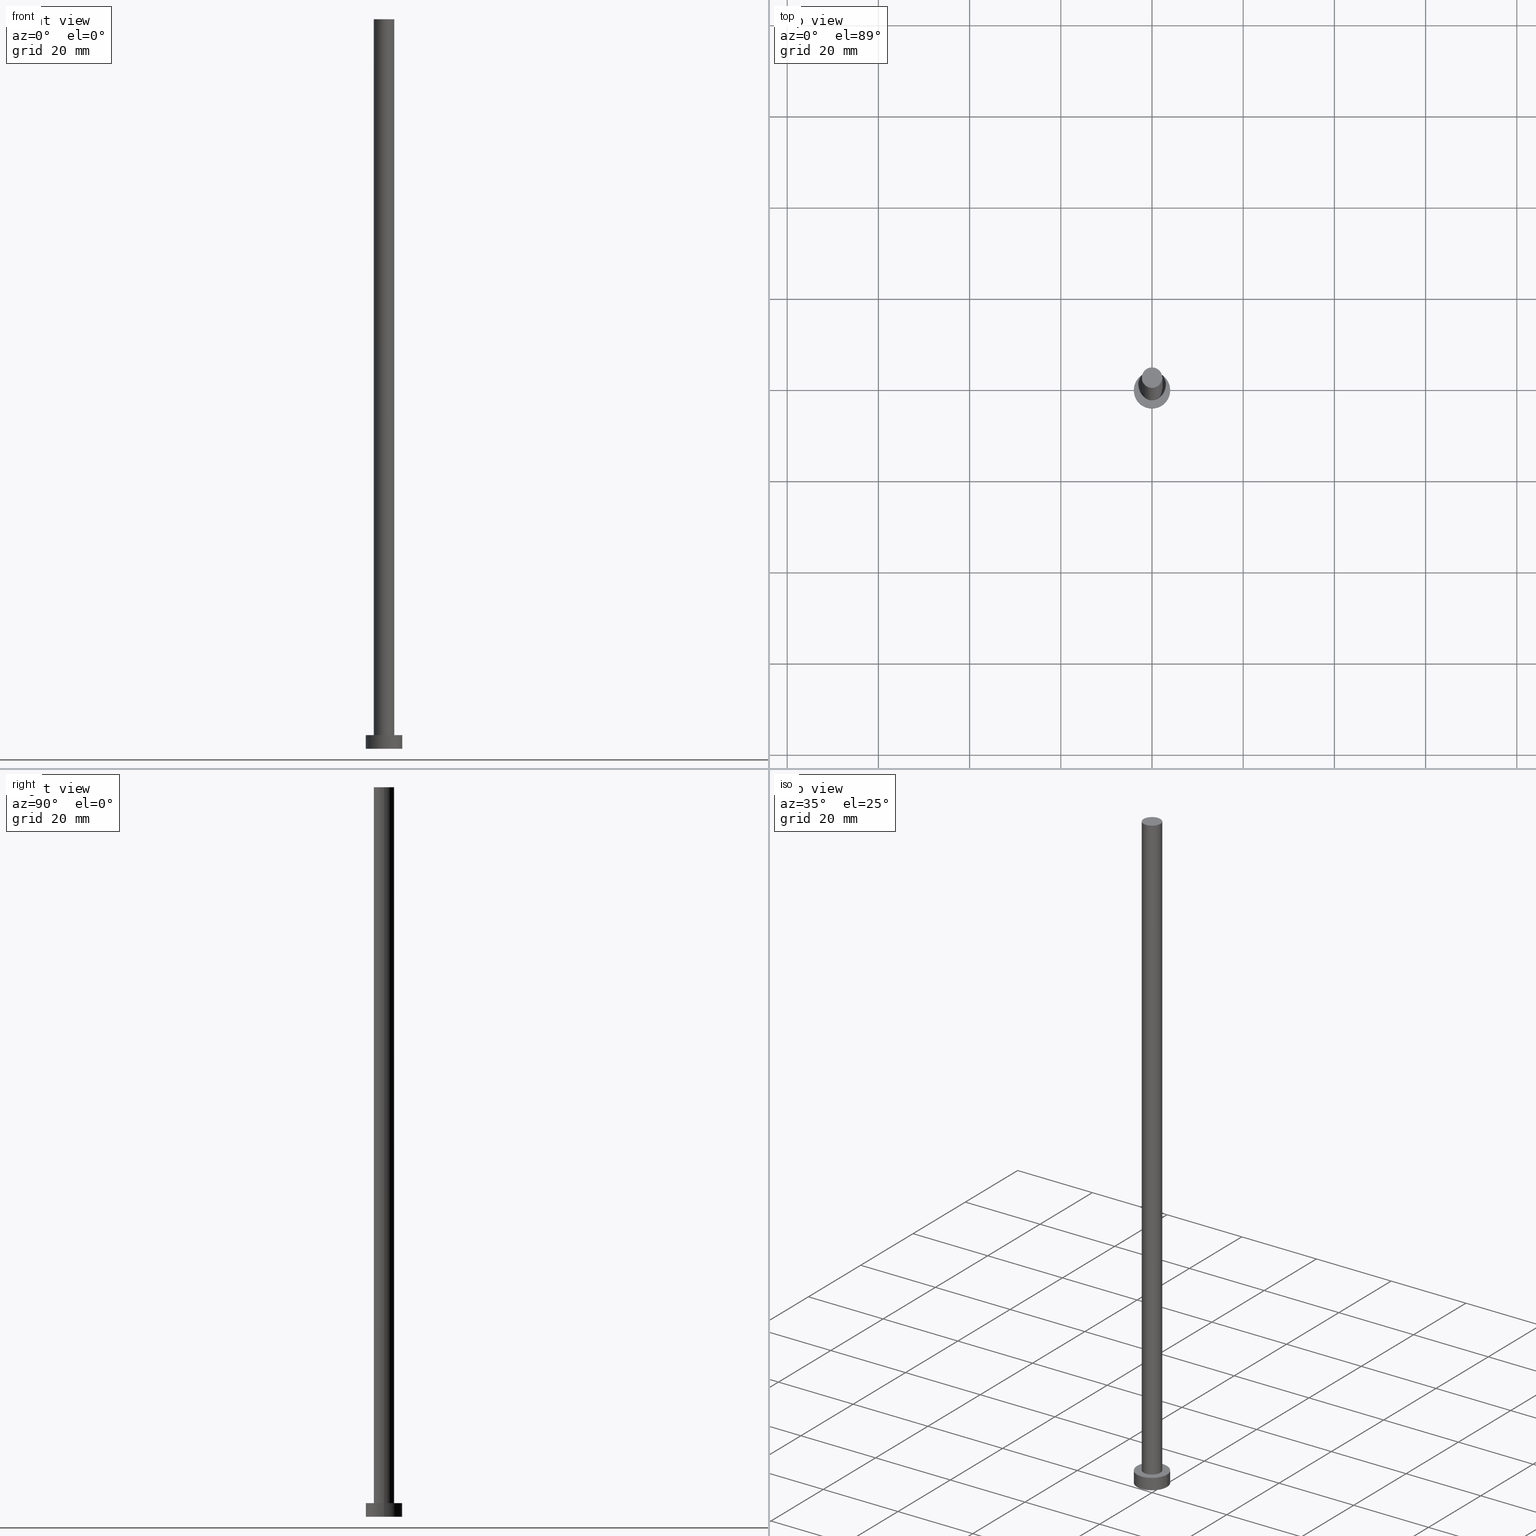
[diagram: canonical four-view strip — front | top / right | iso, engineering-drawing reading convention]
A machine part, canonical four-view strip (front | top / right | iso — engineering-drawing reading convention). The complete STEP part file that produces these views, byte-faithful:
ISO-10303-21;
HEADER;
FILE_DESCRIPTION (( 'STEP AP203' ),
    '1' );
FILE_NAME ('1904.STEP',
    '2023-02-13T16:06:51',
    ( '' ),
    ( '' ),
    'SwSTEP 2.0',
    'SolidWorks 2019',
    '' );
FILE_SCHEMA (( 'CONFIG_CONTROL_DESIGN' ));
ENDSEC;

DATA;
#1 = VECTOR ( 'NONE', #252, 1000.000000000000000 ) ;
#2 = CARTESIAN_POINT ( 'NONE',  ( 0.000000000000000000, 0.000000000000000000, 160.0000000000000000 ) ) ;
#3 = VERTEX_POINT ( 'NONE', #47 ) ;
#4 = EDGE_CURVE ( 'NONE', #236, #3, #185, .T. ) ;
#5 = AXIS2_PLACEMENT_3D ( 'NONE', #2, #237, #72 ) ;
#6 = EDGE_LOOP ( 'NONE', ( #20, #26, #219, #217 ) ) ;
#7 = ADVANCED_FACE ( 'NONE', ( #35, #172 ), #80, .T. ) ;
#8 = DESIGN_CONTEXT ( 'detailed design', #84, 'design' ) ;
#9 = DIRECTION ( 'NONE',  ( 1.000000000000000000, 0.000000000000000000, -0.000000000000000000 ) ) ;
#10 = DIRECTION ( 'NONE',  ( 0.000000000000000000, 0.000000000000000000, 1.000000000000000000 ) ) ;
#11 = CALENDAR_DATE ( 2023, 13, 2 ) ;
#12 = AXIS2_PLACEMENT_3D ( 'NONE', #89, #160, #66 ) ;
#13 = APPROVAL_ROLE ( '' ) ;
#14 = PERSON_AND_ORGANIZATION_ROLE ( 'design_supplier' ) ;
#15 = LINE ( 'NONE', #146, #1 ) ;
#16 = MECHANICAL_CONTEXT ( 'NONE', #25, 'mechanical' ) ;
#17 = CARTESIAN_POINT ( 'NONE',  ( 0.000000000000000000, 0.000000000000000000, 3.000000000000000000 ) ) ;
#18 = APPROVAL_DATE_TIME ( #147, #241 ) ;
#19 = DIRECTION ( 'NONE',  ( 1.000000000000000000, 0.000000000000000000, 0.000000000000000000 ) ) ;
#20 = ORIENTED_EDGE ( 'NONE', *, *, #218, .F. ) ;
#21 = COORDINATED_UNIVERSAL_TIME_OFFSET ( 1, 0, .AHEAD. ) ;
#22 = CARTESIAN_POINT ( 'NONE',  ( 0.000000000000000000, 0.000000000000000000, 3.000000000000000000 ) ) ;
#23 = CARTESIAN_POINT ( 'NONE',  ( 2.250000000000000000, 2.755455298081544285E-16, 160.0000000000000000 ) ) ;
#24 = EDGE_CURVE ( 'NONE', #57, #174, #182, .T. ) ;
#25 = APPLICATION_CONTEXT ( 'configuration controlled 3d designs of mechanical parts and assemblies' ) ;
#26 = ORIENTED_EDGE ( 'NONE', *, *, #24, .F. ) ;
#27 = DIRECTION ( 'NONE',  ( 1.000000000000000000, 0.000000000000000000, -0.000000000000000000 ) ) ;
#28 = AXIS2_PLACEMENT_3D ( 'NONE', #238, #178, #158 ) ;
#29 = ORGANIZATION ( 'NEUR�EN�', 'NEUR�EN�', '' ) ;
#30 = EDGE_CURVE ( 'NONE', #31, #196, #220, .T. ) ;
#31 = VERTEX_POINT ( 'NONE', #81 ) ;
#32 = APPROVAL_STATUS ( 'not_yet_approved' ) ;
#33 = COORDINATED_UNIVERSAL_TIME_OFFSET ( 1, 0, .AHEAD. ) ;
#34 = APPROVAL_DATE_TIME ( #162, #231 ) ;
#35 = FACE_BOUND ( 'NONE', #107, .T. ) ;
#36 = LOCAL_TIME ( 17, 6, 51.00000000000000000, #255 ) ;
#37 = EDGE_LOOP ( 'NONE', ( #125, #169 ) ) ;
#38 = PERSON_AND_ORGANIZATION ( #221, #29 ) ;
#39 = CC_DESIGN_PERSON_AND_ORGANIZATION_ASSIGNMENT ( #116, #152, ( #246 ) ) ;
#40 = CALENDAR_DATE ( 2023, 13, 2 ) ;
#41 = ORIENTED_EDGE ( 'NONE', *, *, #65, .F. ) ;
#42 = DIRECTION ( 'NONE',  ( 0.000000000000000000, 0.000000000000000000, 1.000000000000000000 ) ) ;
#43 = FACE_OUTER_BOUND ( 'NONE', #6, .T. ) ;
#44 = ADVANCED_FACE ( 'NONE', ( #233 ), #58, .T. ) ;
#45 = CC_DESIGN_PERSON_AND_ORGANIZATION_ASSIGNMENT ( #249, #164, ( #171 ) ) ;
#46 = AXIS2_PLACEMENT_3D ( 'NONE', #191, #209, #186 ) ;
#47 = CARTESIAN_POINT ( 'NONE',  ( -2.250000000000000000, 0.000000000000000000, 160.0000000000000000 ) ) ;
#48 = DIRECTION ( 'NONE',  ( -0.000000000000000000, -0.000000000000000000, -1.000000000000000000 ) ) ;
#49 = VECTOR ( 'NONE', #149, 1000.000000000000000 ) ;
#50 = ADVANCED_FACE ( 'NONE', ( #102 ), #177, .T. ) ;
#51 = DATE_AND_TIME ( #67, #161 ) ;
#52 = EDGE_CURVE ( 'NONE', #3, #100, #15, .T. ) ;
#53 = ORIENTED_EDGE ( 'NONE', *, *, #52, .F. ) ;
#54 = APPLICATION_PROTOCOL_DEFINITION ( 'international standard', 'config_control_design', 1994, #84 ) ;
#55 = PRODUCT_RELATED_PRODUCT_CATEGORY ( 'detail', '', ( #246 ) ) ;
#56 = CIRCLE ( 'NONE', #247, 4.000000000000000000 ) ;
#57 = VERTEX_POINT ( 'NONE', #163 ) ;
#58 = PLANE ( 'NONE',  #87 ) ;
#59 = CC_DESIGN_APPROVAL ( #242, ( #199 ) ) ;
#60 = ORIENTED_EDGE ( 'NONE', *, *, #214, .F. ) ;
#61 = ORIENTED_EDGE ( 'NONE', *, *, #215, .T. ) ;
#62 = CARTESIAN_POINT ( 'NONE',  ( 0.000000000000000000, 0.000000000000000000, 160.0000000000000000 ) ) ;
#63 = ORIENTED_EDGE ( 'NONE', *, *, #114, .F. ) ;
#64 = COORDINATED_UNIVERSAL_TIME_OFFSET ( 1, 0, .AHEAD. ) ;
#65 = EDGE_CURVE ( 'NONE', #243, #100, #179, .T. ) ;
#66 = DIRECTION ( 'NONE',  ( 1.000000000000000000, 0.000000000000000000, 0.000000000000000000 ) ) ;
#67 = CALENDAR_DATE ( 2023, 13, 2 ) ;
#68 = AXIS2_PLACEMENT_3D ( 'NONE', #148, #187, #19 ) ;
#69 = CC_DESIGN_PERSON_AND_ORGANIZATION_ASSIGNMENT ( #145, #142, ( #97 ) ) ;
#70 = SECURITY_CLASSIFICATION_LEVEL ( 'unclassified' ) ;
#71 = CARTESIAN_POINT ( 'NONE',  ( 4.000000000000000000, 4.898587196589412829E-16, 3.000000000000000000 ) ) ;
#72 = DIRECTION ( 'NONE',  ( -1.000000000000000000, 0.000000000000000000, 0.000000000000000000 ) ) ;
#73 = EDGE_CURVE ( 'NONE', #196, #31, #90, .T. ) ;
#74 = ORIENTED_EDGE ( 'NONE', *, *, #4, .F. ) ;
#75 = CARTESIAN_POINT ( 'NONE',  ( -4.000000000000000000, 0.000000000000000000, 3.000000000000000000 ) ) ;
#76 = DIRECTION ( 'NONE',  ( 0.000000000000000000, 0.000000000000000000, 1.000000000000000000 ) ) ;
#77 = DIRECTION ( 'NONE',  ( -0.000000000000000000, -0.000000000000000000, -1.000000000000000000 ) ) ;
#78 = CARTESIAN_POINT ( 'NONE',  ( 0.000000000000000000, 0.000000000000000000, 160.0000000000000000 ) ) ;
#79 = AXIS2_PLACEMENT_3D ( 'NONE', #17, #189, #101 ) ;
#80 = PLANE ( 'NONE',  #79 ) ;
#81 = CARTESIAN_POINT ( 'NONE',  ( 4.000000000000000000, 4.898587196589412829E-16, 0.000000000000000000 ) ) ;
#82 = VECTOR ( 'NONE', #110, 1000.000000000000000 ) ;
#83 =( NAMED_UNIT ( * ) SI_UNIT ( $, .STERADIAN. ) SOLID_ANGLE_UNIT ( ) );
#84 = APPLICATION_CONTEXT ( 'configuration controlled 3d designs of mechanical parts and assemblies' ) ;
#85 = CYLINDRICAL_SURFACE ( 'NONE', #28, 4.000000000000000000 ) ;
#86 = ORIENTED_EDGE ( 'NONE', *, *, #114, .T. ) ;
#87 = AXIS2_PLACEMENT_3D ( 'NONE', #62, #123, #27 ) ;
#88 = PRODUCT_DEFINITION_SHAPE ( 'NONE', 'NONE',  #171 ) ;
#89 = CARTESIAN_POINT ( 'NONE',  ( 0.000000000000000000, 0.000000000000000000, 3.000000000000000000 ) ) ;
#90 = CIRCLE ( 'NONE', #68, 4.000000000000000000 ) ;
#91 = CARTESIAN_POINT ( 'NONE',  ( 0.000000000000000000, 0.000000000000000000, 0.000000000000000000 ) ) ;
#92 = AXIS2_PLACEMENT_3D ( 'NONE', #159, #244, #156 ) ;
#93 = LINE ( 'NONE', #71, #49 ) ;
#94 = ORIENTED_EDGE ( 'NONE', *, *, #214, .T. ) ;
#95 = EDGE_LOOP ( 'NONE', ( #138, #224, #202, #119 ) ) ;
#96 = APPROVAL_ROLE ( '' ) ;
#97 = PRODUCT_DEFINITION_FORMATION_WITH_SPECIFIED_SOURCE ( 'LIBOVOLN�', '', #246, .NOT_KNOWN. ) ;
#98 = ORIENTED_EDGE ( 'NONE', *, *, #52, .T. ) ;
#99 = APPROVAL_DATE_TIME ( #197, #242 ) ;
#100 = VERTEX_POINT ( 'NONE', #168 ) ;
#101 = DIRECTION ( 'NONE',  ( 1.000000000000000000, 0.000000000000000000, -0.000000000000000000 ) ) ;
#102 = FACE_OUTER_BOUND ( 'NONE', #248, .T. ) ;
#103 = CARTESIAN_POINT ( 'NONE',  ( 2.250000000000000000, 2.755455298081544285E-16, 3.000000000000000000 ) ) ;
#104 = EDGE_CURVE ( 'NONE', #174, #57, #56, .T. ) ;
#105 = ADVANCED_FACE ( 'NONE', ( #43 ), #108, .T. ) ;
#106 = ADVANCED_FACE ( 'NONE', ( #136 ), #85, .T. ) ;
#107 = EDGE_LOOP ( 'NONE', ( #63, #41 ) ) ;
#108 = CYLINDRICAL_SURFACE ( 'NONE', #92, 4.000000000000000000 ) ;
#109 = ADVANCED_BREP_SHAPE_REPRESENTATION ( '1904', ( #121, #46 ), #118 ) ;
#110 = DIRECTION ( 'NONE',  ( -0.000000000000000000, -0.000000000000000000, -1.000000000000000000 ) ) ;
#111 = ADVANCED_FACE ( 'NONE', ( #226 ), #213, .F. ) ;
#112 = DATE_AND_TIME ( #40, #131 ) ;
#113 = APPROVAL_ROLE ( '' ) ;
#114 = EDGE_CURVE ( 'NONE', #100, #243, #181, .T. ) ;
#115 = CC_DESIGN_DATE_AND_TIME_ASSIGNMENT ( #51, #206, ( #171 ) ) ;
#116 = PERSON_AND_ORGANIZATION ( #221, #29 ) ;
#117 = EDGE_CURVE ( 'NONE', #57, #196, #144, .T. ) ;
#118 =( GEOMETRIC_REPRESENTATION_CONTEXT ( 3 ) GLOBAL_UNCERTAINTY_ASSIGNED_CONTEXT ( ( #180 ) ) GLOBAL_UNIT_ASSIGNED_CONTEXT ( ( #124, #201, #83 ) ) REPRESENTATION_CONTEXT ( 'NONE', 'WORKASPACE' ) );
#119 = ORIENTED_EDGE ( 'NONE', *, *, #117, .F. ) ;
#120 = CARTESIAN_POINT ( 'NONE',  ( 0.000000000000000000, 0.000000000000000000, 0.000000000000000000 ) ) ;
#121 = MANIFOLD_SOLID_BREP ( 'P�idat vysunut�m3', #230 ) ;
#122 = DIRECTION ( 'NONE',  ( 0.000000000000000000, 0.000000000000000000, 1.000000000000000000 ) ) ;
#123 = DIRECTION ( 'NONE',  ( 0.000000000000000000, 0.000000000000000000, 1.000000000000000000 ) ) ;
#124 =( LENGTH_UNIT ( ) NAMED_UNIT ( * ) SI_UNIT ( .MILLI., .METRE. ) );
#125 = ORIENTED_EDGE ( 'NONE', *, *, #24, .T. ) ;
#126 = PERSON_AND_ORGANIZATION ( #221, #29 ) ;
#127 = AXIS2_PLACEMENT_3D ( 'NONE', #229, #157, #193 ) ;
#128 = VECTOR ( 'NONE', #77, 1000.000000000000000 ) ;
#129 = CARTESIAN_POINT ( 'NONE',  ( 0.000000000000000000, 0.000000000000000000, 160.0000000000000000 ) ) ;
#130 = CIRCLE ( 'NONE', #234, 2.250000000000000000 ) ;
#131 = LOCAL_TIME ( 17, 6, 51.00000000000000000, #222 ) ;
#132 = ORIENTED_EDGE ( 'NONE', *, *, #215, .F. ) ;
#133 = EDGE_LOOP ( 'NONE', ( #132, #60, #98, #86 ) ) ;
#134 = DIRECTION ( 'NONE',  ( 1.000000000000000000, 0.000000000000000000, 0.000000000000000000 ) ) ;
#135 = DIRECTION ( 'NONE',  ( -1.000000000000000000, 0.000000000000000000, 0.000000000000000000 ) ) ;
#136 = FACE_OUTER_BOUND ( 'NONE', #95, .T. ) ;
#137 = FACE_OUTER_BOUND ( 'NONE', #133, .T. ) ;
#138 = ORIENTED_EDGE ( 'NONE', *, *, #104, .F. ) ;
#139 = CC_DESIGN_PERSON_AND_ORGANIZATION_ASSIGNMENT ( #227, #251, ( #199 ) ) ;
#140 = CARTESIAN_POINT ( 'NONE',  ( -4.000000000000000000, 0.000000000000000000, 0.000000000000000000 ) ) ;
#141 = CC_DESIGN_APPROVAL ( #241, ( #171 ) ) ;
#142 = PERSON_AND_ORGANIZATION_ROLE ( 'creator' ) ;
#143 = AXIS2_PLACEMENT_3D ( 'NONE', #129, #205, #195 ) ;
#144 = LINE ( 'NONE', #75, #128 ) ;
#145 = PERSON_AND_ORGANIZATION ( #221, #29 ) ;
#146 = CARTESIAN_POINT ( 'NONE',  ( -2.250000000000000000, 0.000000000000000000, 160.0000000000000000 ) ) ;
#147 = DATE_AND_TIME ( #188, #166 ) ;
#148 = CARTESIAN_POINT ( 'NONE',  ( 0.000000000000000000, 0.000000000000000000, 0.000000000000000000 ) ) ;
#149 = DIRECTION ( 'NONE',  ( -0.000000000000000000, -0.000000000000000000, -1.000000000000000000 ) ) ;
#150 = AXIS2_PLACEMENT_3D ( 'NONE', #200, #48, #135 ) ;
#151 = ORIENTED_EDGE ( 'NONE', *, *, #30, .F. ) ;
#152 = PERSON_AND_ORGANIZATION_ROLE ( 'design_owner' ) ;
#153 = DIRECTION ( 'NONE',  ( 1.000000000000000000, 0.000000000000000000, 0.000000000000000000 ) ) ;
#154 = DIRECTION ( 'NONE',  ( 1.000000000000000000, 0.000000000000000000, 0.000000000000000000 ) ) ;
#155 = CC_DESIGN_SECURITY_CLASSIFICATION ( #199, ( #97 ) ) ;
#156 = DIRECTION ( 'NONE',  ( -1.000000000000000000, 0.000000000000000000, 0.000000000000000000 ) ) ;
#157 = DIRECTION ( 'NONE',  ( 0.000000000000000000, 0.000000000000000000, 1.000000000000000000 ) ) ;
#158 = DIRECTION ( 'NONE',  ( -1.000000000000000000, 0.000000000000000000, 0.000000000000000000 ) ) ;
#159 = CARTESIAN_POINT ( 'NONE',  ( 0.000000000000000000, 0.000000000000000000, 3.000000000000000000 ) ) ;
#160 = DIRECTION ( 'NONE',  ( 0.000000000000000000, 0.000000000000000000, 1.000000000000000000 ) ) ;
#161 = LOCAL_TIME ( 17, 6, 51.00000000000000000, #64 ) ;
#162 = DATE_AND_TIME ( #11, #194 ) ;
#163 = CARTESIAN_POINT ( 'NONE',  ( -4.000000000000000000, 0.000000000000000000, 3.000000000000000000 ) ) ;
#164 = PERSON_AND_ORGANIZATION_ROLE ( 'creator' ) ;
#165 = CC_DESIGN_PERSON_AND_ORGANIZATION_ASSIGNMENT ( #184, #14, ( #97 ) ) ;
#166 = LOCAL_TIME ( 17, 6, 51.00000000000000000, #21 ) ;
#167 = CC_DESIGN_DATE_AND_TIME_ASSIGNMENT ( #112, #190, ( #199 ) ) ;
#168 = CARTESIAN_POINT ( 'NONE',  ( -2.250000000000000000, 0.000000000000000000, 3.000000000000000000 ) ) ;
#169 = ORIENTED_EDGE ( 'NONE', *, *, #104, .T. ) ;
#170 = DIRECTION ( 'NONE',  ( 0.000000000000000000, 0.000000000000000000, 1.000000000000000000 ) ) ;
#171 = PRODUCT_DEFINITION ( 'NEZN�M�', '', #97, #8 ) ;
#172 = FACE_OUTER_BOUND ( 'NONE', #37, .T. ) ;
#173 = AXIS2_PLACEMENT_3D ( 'NONE', #204, #122, #134 ) ;
#174 = VERTEX_POINT ( 'NONE', #203 ) ;
#175 = APPROVAL_PERSON_ORGANIZATION ( #38, #242, #96 ) ;
#176 = EDGE_LOOP ( 'NONE', ( #254, #151 ) ) ;
#177 = CYLINDRICAL_SURFACE ( 'NONE', #5, 2.250000000000000000 ) ;
#178 = DIRECTION ( 'NONE',  ( -0.000000000000000000, -0.000000000000000000, -1.000000000000000000 ) ) ;
#179 = CIRCLE ( 'NONE', #173, 2.250000000000000000 ) ;
#180 = UNCERTAINTY_MEASURE_WITH_UNIT (LENGTH_MEASURE( 1.000000000000000082E-05 ), #124, 'distance_accuracy_value', 'NONE');
#181 = CIRCLE ( 'NONE', #12, 2.250000000000000000 ) ;
#182 = CIRCLE ( 'NONE', #127, 4.000000000000000000 ) ;
#183 = CC_DESIGN_APPROVAL ( #231, ( #97 ) ) ;
#184 = PERSON_AND_ORGANIZATION ( #221, #29 ) ;
#185 = CIRCLE ( 'NONE', #143, 2.250000000000000000 ) ;
#186 = DIRECTION ( 'NONE',  ( 1.000000000000000000, 0.000000000000000000, 0.000000000000000000 ) ) ;
#187 = DIRECTION ( 'NONE',  ( 0.000000000000000000, 0.000000000000000000, 1.000000000000000000 ) ) ;
#188 = CALENDAR_DATE ( 2023, 13, 2 ) ;
#189 = DIRECTION ( 'NONE',  ( 0.000000000000000000, 0.000000000000000000, 1.000000000000000000 ) ) ;
#190 = DATE_TIME_ROLE ( 'classification_date' ) ;
#191 = CARTESIAN_POINT ( 'NONE',  ( 0.000000000000000000, 0.000000000000000000, 0.000000000000000000 ) ) ;
#192 = AXIS2_PLACEMENT_3D ( 'NONE', #120, #170, #154 ) ;
#193 = DIRECTION ( 'NONE',  ( 1.000000000000000000, 0.000000000000000000, 0.000000000000000000 ) ) ;
#194 = LOCAL_TIME ( 17, 6, 51.00000000000000000, #33 ) ;
#195 = DIRECTION ( 'NONE',  ( 1.000000000000000000, 0.000000000000000000, 0.000000000000000000 ) ) ;
#196 = VERTEX_POINT ( 'NONE', #140 ) ;
#197 = DATE_AND_TIME ( #210, #36 ) ;
#198 = LINE ( 'NONE', #235, #82 ) ;
#199 = SECURITY_CLASSIFICATION ( '', '', #70 ) ;
#200 = CARTESIAN_POINT ( 'NONE',  ( 0.000000000000000000, 0.000000000000000000, 160.0000000000000000 ) ) ;
#201 =( NAMED_UNIT ( * ) PLANE_ANGLE_UNIT ( ) SI_UNIT ( $, .RADIAN. ) );
#202 = ORIENTED_EDGE ( 'NONE', *, *, #30, .T. ) ;
#203 = CARTESIAN_POINT ( 'NONE',  ( 4.000000000000000000, 4.898587196589412829E-16, 3.000000000000000000 ) ) ;
#204 = CARTESIAN_POINT ( 'NONE',  ( 0.000000000000000000, 0.000000000000000000, 3.000000000000000000 ) ) ;
#205 = DIRECTION ( 'NONE',  ( 0.000000000000000000, 0.000000000000000000, 1.000000000000000000 ) ) ;
#206 = DATE_TIME_ROLE ( 'creation_date' ) ;
#207 = APPROVAL_STATUS ( 'not_yet_approved' ) ;
#208 = APPROVAL_PERSON_ORGANIZATION ( #126, #231, #13 ) ;
#209 = DIRECTION ( 'NONE',  ( 0.000000000000000000, 0.000000000000000000, 1.000000000000000000 ) ) ;
#210 = CALENDAR_DATE ( 2023, 13, 2 ) ;
#211 = APPROVAL_STATUS ( 'not_yet_approved' ) ;
#212 = APPROVAL_PERSON_ORGANIZATION ( #253, #241, #113 ) ;
#213 = PLANE ( 'NONE',  #225 ) ;
#214 = EDGE_CURVE ( 'NONE', #3, #236, #130, .T. ) ;
#215 = EDGE_CURVE ( 'NONE', #236, #243, #198, .T. ) ;
#216 = DIRECTION ( 'NONE',  ( 1.000000000000000000, 0.000000000000000000, 0.000000000000000000 ) ) ;
#217 = ORIENTED_EDGE ( 'NONE', *, *, #73, .T. ) ;
#218 = EDGE_CURVE ( 'NONE', #174, #31, #93, .T. ) ;
#219 = ORIENTED_EDGE ( 'NONE', *, *, #117, .T. ) ;
#220 = CIRCLE ( 'NONE', #192, 4.000000000000000000 ) ;
#221 = PERSON ( 'NEUR�EN�', 'NEUR�EN�', 'NEUR�EN�', ('NEUR�EN�'), ('NEUR�EN�'), ('NEUR�EN�') ) ;
#222 = COORDINATED_UNIVERSAL_TIME_OFFSET ( 1, 0, .AHEAD. ) ;
#223 = APPLICATION_PROTOCOL_DEFINITION ( 'international standard', 'config_control_design', 1994, #25 ) ;
#224 = ORIENTED_EDGE ( 'NONE', *, *, #218, .T. ) ;
#225 = AXIS2_PLACEMENT_3D ( 'NONE', #91, #10, #9 ) ;
#226 = FACE_OUTER_BOUND ( 'NONE', #176, .T. ) ;
#227 = PERSON_AND_ORGANIZATION ( #221, #29 ) ;
#228 = EDGE_LOOP ( 'NONE', ( #94, #232 ) ) ;
#229 = CARTESIAN_POINT ( 'NONE',  ( 0.000000000000000000, 0.000000000000000000, 3.000000000000000000 ) ) ;
#230 = CLOSED_SHELL ( 'NONE', ( #50, #106, #105, #7, #111, #239, #44 ) ) ;
#231 = APPROVAL ( #32, 'NEUR�EN�' ) ;
#232 = ORIENTED_EDGE ( 'NONE', *, *, #4, .T. ) ;
#233 = FACE_OUTER_BOUND ( 'NONE', #228, .T. ) ;
#234 = AXIS2_PLACEMENT_3D ( 'NONE', #78, #42, #216 ) ;
#235 = CARTESIAN_POINT ( 'NONE',  ( 2.250000000000000000, 2.755455298081544285E-16, 160.0000000000000000 ) ) ;
#236 = VERTEX_POINT ( 'NONE', #23 ) ;
#237 = DIRECTION ( 'NONE',  ( -0.000000000000000000, -0.000000000000000000, -1.000000000000000000 ) ) ;
#238 = CARTESIAN_POINT ( 'NONE',  ( 0.000000000000000000, 0.000000000000000000, 3.000000000000000000 ) ) ;
#239 = ADVANCED_FACE ( 'NONE', ( #137 ), #245, .T. ) ;
#240 = ORIENTED_EDGE ( 'NONE', *, *, #65, .T. ) ;
#241 = APPROVAL ( #207, 'NEUR�EN�' ) ;
#242 = APPROVAL ( #211, 'NEUR�EN�' ) ;
#243 = VERTEX_POINT ( 'NONE', #103 ) ;
#244 = DIRECTION ( 'NONE',  ( -0.000000000000000000, -0.000000000000000000, -1.000000000000000000 ) ) ;
#245 = CYLINDRICAL_SURFACE ( 'NONE', #150, 2.250000000000000000 ) ;
#246 = PRODUCT ( '1904', '1904', '', ( #16 ) ) ;
#247 = AXIS2_PLACEMENT_3D ( 'NONE', #22, #76, #153 ) ;
#248 = EDGE_LOOP ( 'NONE', ( #74, #61, #240, #53 ) ) ;
#249 = PERSON_AND_ORGANIZATION ( #221, #29 ) ;
#250 = SHAPE_DEFINITION_REPRESENTATION ( #88, #109 ) ;
#251 = PERSON_AND_ORGANIZATION_ROLE ( 'classification_officer' ) ;
#252 = DIRECTION ( 'NONE',  ( -0.000000000000000000, -0.000000000000000000, -1.000000000000000000 ) ) ;
#253 = PERSON_AND_ORGANIZATION ( #221, #29 ) ;
#254 = ORIENTED_EDGE ( 'NONE', *, *, #73, .F. ) ;
#255 = COORDINATED_UNIVERSAL_TIME_OFFSET ( 1, 0, .AHEAD. ) ;
ENDSEC;
END-ISO-10303-21;
